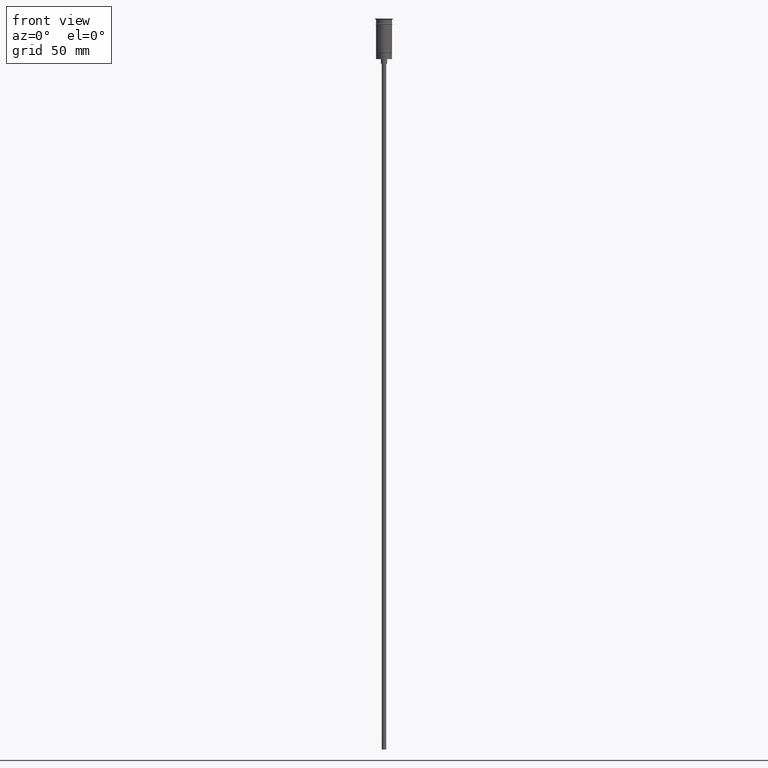
[diagram: clean part render]
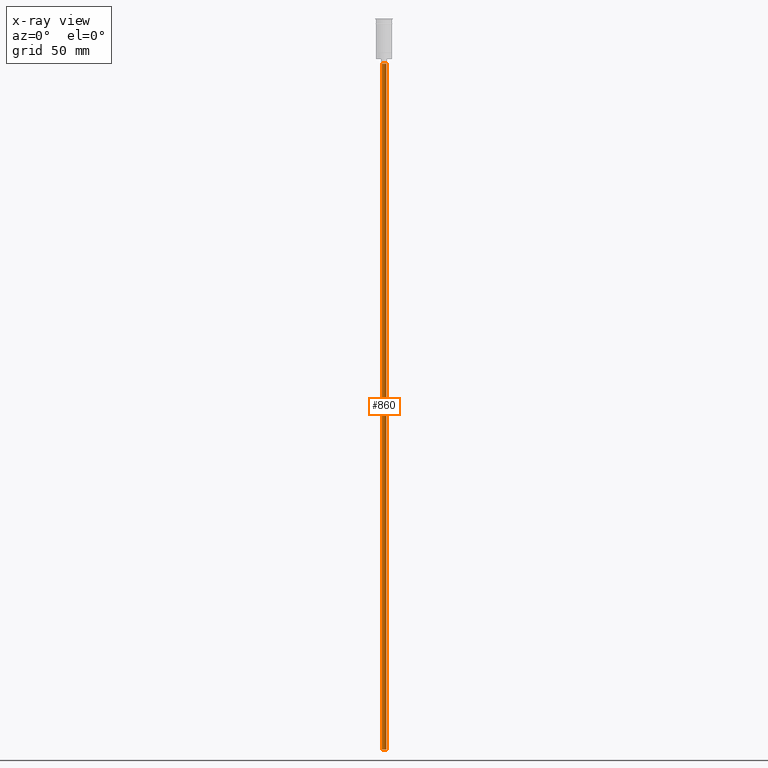
[diagram: x-ray — body ghosted, one internal face saturated and labeled with its STEP entity id]
A machine part, front view, then the same camera in x-ray: the body is ghosted and one INTERNAL B-rep face — a face not visible from any outside direction — is saturated and labeled: STEP entity #860.
In plain terms, the highlighted cylindrical surface (edge-blend (fillet) strip) has radius 1.5 mm, axis along (-0, -0, 1).
Its self-contained STEP definition (entity closure, byte-faithful):
#13 = LINE ( 'NONE', #1119, #1391 ) ;
#65 = EDGE_LOOP ( 'NONE', ( #1539, #1592, #79, #1434 ) ) ;
#77 = EDGE_CURVE ( 'NONE', #347, #1224, #13, .T. ) ;
#79 = ORIENTED_EDGE ( 'NONE', *, *, #697, .T. ) ;
#97 = VECTOR ( 'NONE', #1148, 1000.000000000000000 ) ;
#156 = CARTESIAN_POINT ( 'NONE',  ( 0.000000000000000000, 0.000000000000000000, -476.5000000000000568 ) ) ;
#165 = CARTESIAN_POINT ( 'NONE',  ( 1.500000000000000222, 0.000000000000000000, -29.50000000000000000 ) ) ;
#201 = AXIS2_PLACEMENT_3D ( 'NONE', #291, #1281, #677 ) ;
#289 = DIRECTION ( 'NONE',  ( -1.000000000000000000, 0.000000000000000000, 0.000000000000000000 ) ) ;
#291 = CARTESIAN_POINT ( 'NONE',  ( 0.000000000000000000, 0.000000000000000000, -29.50000000000000000 ) ) ;
#347 = VERTEX_POINT ( 'NONE', #1330 ) ;
#408 = CIRCLE ( 'NONE', #614, 1.500000000000000222 ) ;
#434 = LINE ( 'NONE', #556, #97 ) ;
#539 = AXIS2_PLACEMENT_3D ( 'NONE', #1207, #597, #1349 ) ;
#556 = CARTESIAN_POINT ( 'NONE',  ( 1.500000000000000222, 0.000000000000000000, -476.5000000000000568 ) ) ;
#597 = DIRECTION ( 'NONE',  ( -0.000000000000000000, -0.000000000000000000, 1.000000000000000000 ) ) ;
#614 = AXIS2_PLACEMENT_3D ( 'NONE', #156, #1279, #289 ) ;
#650 = VERTEX_POINT ( 'NONE', #165 ) ;
#677 = DIRECTION ( 'NONE',  ( -1.000000000000000000, 0.000000000000000000, 0.000000000000000000 ) ) ;
#697 = EDGE_CURVE ( 'NONE', #1224, #650, #1106, .T. ) ;
#827 = CARTESIAN_POINT ( 'NONE',  ( 1.500000000000000222, 0.000000000000000000, -476.5000000000000568 ) ) ;
#860 = ADVANCED_FACE ( 'NONE', ( #1076 ), #1322, .T. ) ;
#1076 = FACE_OUTER_BOUND ( 'NONE', #65, .T. ) ;
#1105 = EDGE_CURVE ( 'NONE', #347, #1312, #408, .T. ) ;
#1106 = CIRCLE ( 'NONE', #201, 1.500000000000000222 ) ;
#1119 = CARTESIAN_POINT ( 'NONE',  ( -1.500000000000000222, 1.836970198721030181E-16, -476.5000000000000568 ) ) ;
#1146 = EDGE_CURVE ( 'NONE', #1312, #650, #434, .T. ) ;
#1148 = DIRECTION ( 'NONE',  ( -0.000000000000000000, -0.000000000000000000, 1.000000000000000000 ) ) ;
#1152 = DIRECTION ( 'NONE',  ( -0.000000000000000000, -0.000000000000000000, 1.000000000000000000 ) ) ;
#1204 = CARTESIAN_POINT ( 'NONE',  ( -1.500000000000000222, 1.836970198721030181E-16, -29.50000000000000000 ) ) ;
#1207 = CARTESIAN_POINT ( 'NONE',  ( 0.000000000000000000, 0.000000000000000000, -476.5000000000000568 ) ) ;
#1224 = VERTEX_POINT ( 'NONE', #1204 ) ;
#1279 = DIRECTION ( 'NONE',  ( 0.000000000000000000, 0.000000000000000000, -1.000000000000000000 ) ) ;
#1281 = DIRECTION ( 'NONE',  ( 0.000000000000000000, 0.000000000000000000, -1.000000000000000000 ) ) ;
#1312 = VERTEX_POINT ( 'NONE', #827 ) ;
#1322 = CYLINDRICAL_SURFACE ( 'NONE', #539, 1.500000000000000222 ) ;
#1330 = CARTESIAN_POINT ( 'NONE',  ( -1.500000000000000222, 1.836970198721030181E-16, -476.5000000000000568 ) ) ;
#1349 = DIRECTION ( 'NONE',  ( 1.000000000000000000, 0.000000000000000000, 0.000000000000000000 ) ) ;
#1391 = VECTOR ( 'NONE', #1152, 1000.000000000000000 ) ;
#1434 = ORIENTED_EDGE ( 'NONE', *, *, #1146, .F. ) ;
#1539 = ORIENTED_EDGE ( 'NONE', *, *, #1105, .F. ) ;
#1592 = ORIENTED_EDGE ( 'NONE', *, *, #77, .T. ) ;